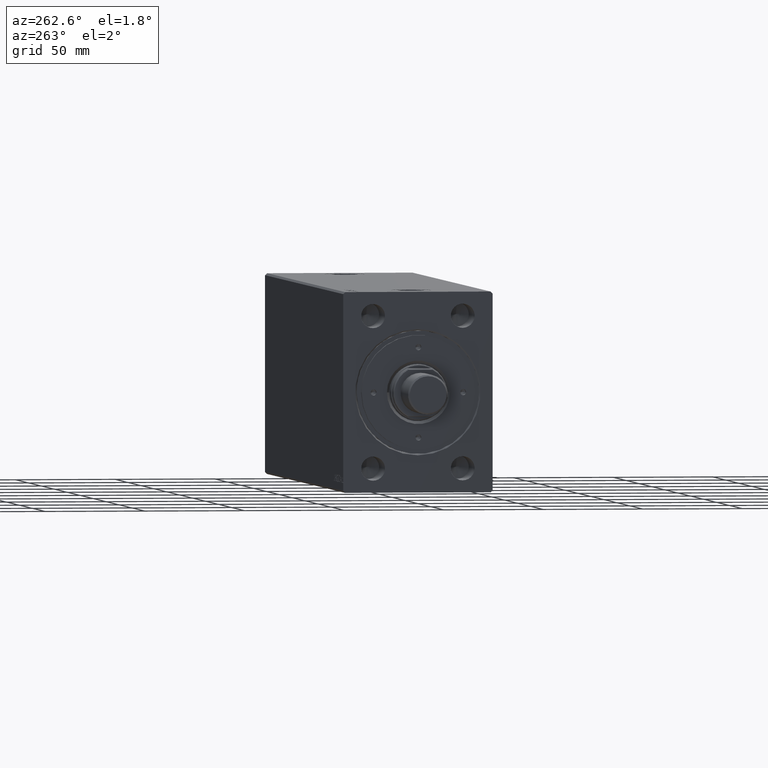
[diagram: clean part render]
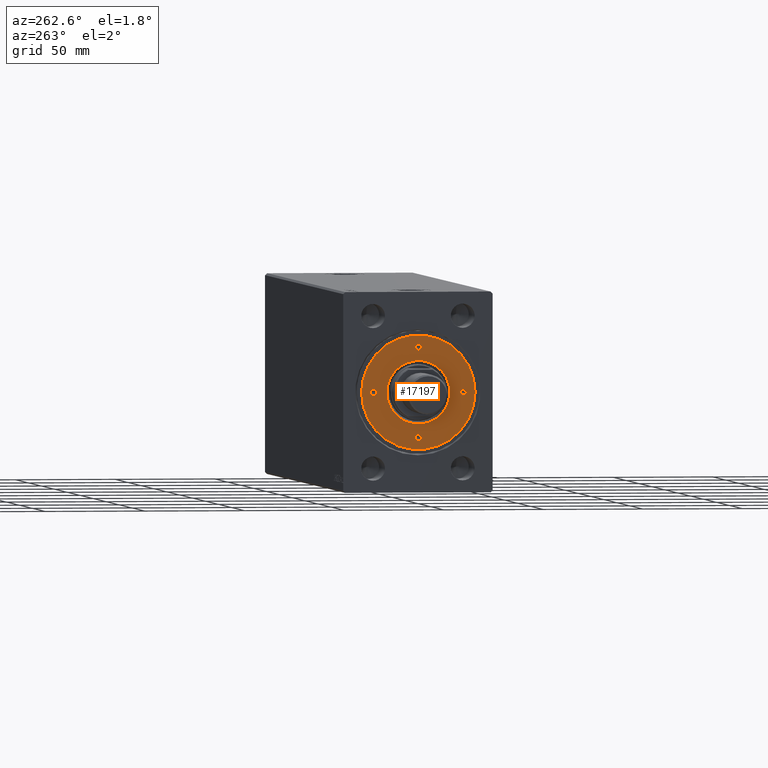
[diagram: same view with one face highlighted and labeled with its STEP entity id]
A machine part, auxiliary view. The second image highlights one B-rep face of the part: STEP entity #17197.
In plain terms, the highlighted planar face has unit normal (-1, 0, 0).
Its self-contained STEP definition (entity closure, byte-faithful):
#361 = CIRCLE ( 'NONE', #38265, 1.499999999999997780 ) ;
#528 = DIRECTION ( 'NONE',  ( 1.000000000000000000, 0.000000000000000000, 0.000000000000000000 ) ) ;
#835 = VERTEX_POINT ( 'NONE', #17282 ) ;
#1227 = VERTEX_POINT ( 'NONE', #39185 ) ;
#1899 = CARTESIAN_POINT ( 'NONE',  ( 23.99999999999999645, 0.000000000000000000, 83.79999999999999716 ) ) ;
#2348 = AXIS2_PLACEMENT_3D ( 'NONE', #18953, #12671, #2373 ) ;
#2373 = DIRECTION ( 'NONE',  ( 1.000000000000000000, 0.000000000000000000, 0.000000000000000000 ) ) ;
#2468 = CIRCLE ( 'NONE', #26163, 1.499999999999996891 ) ;
#2480 = DIRECTION ( 'NONE',  ( 0.000000000000000000, 0.000000000000000000, 1.000000000000000000 ) ) ;
#3169 = AXIS2_PLACEMENT_3D ( 'NONE', #8249, #11838, #29101 ) ;
#3336 = DIRECTION ( 'NONE',  ( 1.000000000000000000, 0.000000000000000000, 0.000000000000000000 ) ) ;
#4437 = DIRECTION ( 'NONE',  ( -0.000000000000000000, -0.000000000000000000, 1.000000000000000000 ) ) ;
#4731 = VERTEX_POINT ( 'NONE', #8942 ) ;
#4970 = EDGE_CURVE ( 'NONE', #1227, #22409, #7816, .T. ) ;
#5336 = ORIENTED_EDGE ( 'NONE', *, *, #22992, .T. ) ;
#7265 = EDGE_LOOP ( 'NONE', ( #44249, #22972 ) ) ;
#7420 = EDGE_CURVE ( 'NONE', #40053, #4731, #16466, .T. ) ;
#7816 = CIRCLE ( 'NONE', #14985, 1.499999999999997780 ) ;
#7952 = ORIENTED_EDGE ( 'NONE', *, *, #27096, .F. ) ;
#8249 = CARTESIAN_POINT ( 'NONE',  ( 0.000000000000000000, 0.000000000000000000, 83.79999999999999716 ) ) ;
#8795 = DIRECTION ( 'NONE',  ( -0.000000000000000000, -0.000000000000000000, -1.000000000000000000 ) ) ;
#8942 = CARTESIAN_POINT ( 'NONE',  ( 1.499999999999996891, -22.50000000000000000, 83.79999999999999716 ) ) ;
#8998 = DIRECTION ( 'NONE',  ( 0.000000000000000000, 0.000000000000000000, 1.000000000000000000 ) ) ;
#9138 = AXIS2_PLACEMENT_3D ( 'NONE', #31991, #14289, #10704 ) ;
#9340 = AXIS2_PLACEMENT_3D ( 'NONE', #9632, #23309, #22866 ) ;
#9510 = EDGE_LOOP ( 'NONE', ( #27989, #20530 ) ) ;
#9632 = CARTESIAN_POINT ( 'NONE',  ( 0.000000000000000000, -22.50000000000000000, 83.79999999999999716 ) ) ;
#10704 = DIRECTION ( 'NONE',  ( 1.000000000000000000, 0.000000000000000000, 0.000000000000000000 ) ) ;
#11474 = CARTESIAN_POINT ( 'NONE',  ( 22.50000000000000000, 0.000000000000000000, 83.79999999999999716 ) ) ;
#11676 = CIRCLE ( 'NONE', #23111, 1.499999999999997780 ) ;
#11838 = DIRECTION ( 'NONE',  ( -0.000000000000000000, -0.000000000000000000, -1.000000000000000000 ) ) ;
#12114 = FACE_BOUND ( 'NONE', #17606, .T. ) ;
#12319 = AXIS2_PLACEMENT_3D ( 'NONE', #23071, #2480, #16120 ) ;
#12351 = CIRCLE ( 'NONE', #2348, 1.499999999999997780 ) ;
#12550 = EDGE_LOOP ( 'NONE', ( #37875, #27877 ) ) ;
#12671 = DIRECTION ( 'NONE',  ( -0.000000000000000000, -0.000000000000000000, 1.000000000000000000 ) ) ;
#12693 = CARTESIAN_POINT ( 'NONE',  ( 0.000000000000000000, -22.50000000000000000, 83.79999999999999716 ) ) ;
#12726 = CIRCLE ( 'NONE', #9138, 28.50000000000000000 ) ;
#13181 = DIRECTION ( 'NONE',  ( -0.000000000000000000, -0.000000000000000000, 1.000000000000000000 ) ) ;
#13995 = CARTESIAN_POINT ( 'NONE',  ( -22.50000000000000000, 0.000000000000000000, 83.79999999999999716 ) ) ;
#14289 = DIRECTION ( 'NONE',  ( 0.000000000000000000, 0.000000000000000000, 1.000000000000000000 ) ) ;
#14985 = AXIS2_PLACEMENT_3D ( 'NONE', #32882, #42749, #18979 ) ;
#15082 = EDGE_CURVE ( 'NONE', #4731, #40053, #20148, .T. ) ;
#15189 = VERTEX_POINT ( 'NONE', #1899 ) ;
#15801 = VERTEX_POINT ( 'NONE', #35859 ) ;
#15908 = FACE_OUTER_BOUND ( 'NONE', #32304, .T. ) ;
#15950 = AXIS2_PLACEMENT_3D ( 'NONE', #28756, #8795, #43091 ) ;
#16039 = CIRCLE ( 'NONE', #3169, 15.79999999999997407 ) ;
#16066 = VERTEX_POINT ( 'NONE', #25156 ) ;
#16120 = DIRECTION ( 'NONE',  ( 1.000000000000000000, 0.000000000000000000, -0.000000000000000000 ) ) ;
#16466 = CIRCLE ( 'NONE', #9340, 1.499999999999996891 ) ;
#16677 = DIRECTION ( 'NONE',  ( 1.000000000000000000, 0.000000000000000000, 0.000000000000000000 ) ) ;
#17155 = DIRECTION ( 'NONE',  ( 1.000000000000000000, 0.000000000000000000, 0.000000000000000000 ) ) ;
#17197 = ADVANCED_FACE ( 'NONE', ( #40115, #30031, #43695, #32515, #12114, #15908 ), #19496, .T. ) ;
#17282 = CARTESIAN_POINT ( 'NONE',  ( -28.50000000000000000, 0.000000000000000000, 83.79999999999999716 ) ) ;
#17606 = EDGE_LOOP ( 'NONE', ( #23742, #5336 ) ) ;
#17723 = EDGE_CURVE ( 'NONE', #15801, #15189, #12351, .T. ) ;
#18223 = VERTEX_POINT ( 'NONE', #36928 ) ;
#18953 = CARTESIAN_POINT ( 'NONE',  ( 22.50000000000000000, 0.000000000000000000, 83.79999999999999716 ) ) ;
#18979 = DIRECTION ( 'NONE',  ( 1.000000000000000000, 0.000000000000000000, 0.000000000000000000 ) ) ;
#19168 = EDGE_CURVE ( 'NONE', #18223, #16066, #33150, .T. ) ;
#19496 = PLANE ( 'NONE',  #12319 ) ;
#19783 = EDGE_CURVE ( 'NONE', #22409, #1227, #11676, .T. ) ;
#20148 = CIRCLE ( 'NONE', #42331, 1.499999999999996891 ) ;
#20530 = ORIENTED_EDGE ( 'NONE', *, *, #4970, .F. ) ;
#20914 = VERTEX_POINT ( 'NONE', #28332 ) ;
#21872 = CIRCLE ( 'NONE', #34069, 28.50000000000000000 ) ;
#22409 = VERTEX_POINT ( 'NONE', #41607 ) ;
#22861 = ORIENTED_EDGE ( 'NONE', *, *, #29896, .F. ) ;
#22866 = DIRECTION ( 'NONE',  ( 1.000000000000000000, 0.000000000000000000, 0.000000000000000000 ) ) ;
#22972 = ORIENTED_EDGE ( 'NONE', *, *, #17723, .F. ) ;
#22992 = EDGE_CURVE ( 'NONE', #16066, #18223, #16039, .T. ) ;
#23071 = CARTESIAN_POINT ( 'NONE',  ( 0.000000000000000000, 0.000000000000000000, 83.79999999999999716 ) ) ;
#23111 = AXIS2_PLACEMENT_3D ( 'NONE', #13995, #43809, #16677 ) ;
#23309 = DIRECTION ( 'NONE',  ( -0.000000000000000000, -0.000000000000000000, 1.000000000000000000 ) ) ;
#23742 = ORIENTED_EDGE ( 'NONE', *, *, #19168, .T. ) ;
#25156 = CARTESIAN_POINT ( 'NONE',  ( -15.79999999999997407, 1.934941942652814473E-15, 83.79999999999999716 ) ) ;
#25420 = CIRCLE ( 'NONE', #28986, 1.499999999999996891 ) ;
#25594 = CARTESIAN_POINT ( 'NONE',  ( 0.000000000000000000, 0.000000000000000000, 83.79999999999999716 ) ) ;
#26163 = AXIS2_PLACEMENT_3D ( 'NONE', #28178, #4437, #31766 ) ;
#27096 = EDGE_CURVE ( 'NONE', #44279, #20914, #2468, .T. ) ;
#27859 = VERTEX_POINT ( 'NONE', #31388 ) ;
#27877 = ORIENTED_EDGE ( 'NONE', *, *, #7420, .F. ) ;
#27989 = ORIENTED_EDGE ( 'NONE', *, *, #19783, .F. ) ;
#28178 = CARTESIAN_POINT ( 'NONE',  ( 0.000000000000000000, 22.50000000000000000, 83.79999999999999716 ) ) ;
#28292 = CARTESIAN_POINT ( 'NONE',  ( -1.499999999999996891, -22.50000000000000000, 83.79999999999999716 ) ) ;
#28332 = CARTESIAN_POINT ( 'NONE',  ( 1.499999999999996891, 22.50000000000000000, 83.79999999999999716 ) ) ;
#28384 = ORIENTED_EDGE ( 'NONE', *, *, #37532, .T. ) ;
#28556 = EDGE_CURVE ( 'NONE', #15189, #15801, #361, .T. ) ;
#28704 = EDGE_LOOP ( 'NONE', ( #22861, #7952 ) ) ;
#28756 = CARTESIAN_POINT ( 'NONE',  ( 0.000000000000000000, 0.000000000000000000, 83.79999999999999716 ) ) ;
#28986 = AXIS2_PLACEMENT_3D ( 'NONE', #34031, #13181, #3336 ) ;
#29101 = DIRECTION ( 'NONE',  ( 1.000000000000000000, 0.000000000000000000, 0.000000000000000000 ) ) ;
#29896 = EDGE_CURVE ( 'NONE', #20914, #44279, #25420, .T. ) ;
#30031 = FACE_BOUND ( 'NONE', #28704, .T. ) ;
#30174 = DIRECTION ( 'NONE',  ( -0.000000000000000000, -0.000000000000000000, 1.000000000000000000 ) ) ;
#31388 = CARTESIAN_POINT ( 'NONE',  ( 28.50000000000000000, 3.490243377569956456E-15, 83.79999999999999716 ) ) ;
#31766 = DIRECTION ( 'NONE',  ( 1.000000000000000000, 0.000000000000000000, 0.000000000000000000 ) ) ;
#31812 = EDGE_CURVE ( 'NONE', #27859, #835, #21872, .T. ) ;
#31991 = CARTESIAN_POINT ( 'NONE',  ( 0.000000000000000000, 0.000000000000000000, 83.79999999999999716 ) ) ;
#32304 = EDGE_LOOP ( 'NONE', ( #28384, #33385 ) ) ;
#32515 = FACE_BOUND ( 'NONE', #12550, .T. ) ;
#32882 = CARTESIAN_POINT ( 'NONE',  ( -22.50000000000000000, 0.000000000000000000, 83.79999999999999716 ) ) ;
#33150 = CIRCLE ( 'NONE', #15950, 15.79999999999997407 ) ;
#33385 = ORIENTED_EDGE ( 'NONE', *, *, #31812, .T. ) ;
#34031 = CARTESIAN_POINT ( 'NONE',  ( 0.000000000000000000, 22.50000000000000000, 83.79999999999999716 ) ) ;
#34069 = AXIS2_PLACEMENT_3D ( 'NONE', #25594, #8998, #43509 ) ;
#35859 = CARTESIAN_POINT ( 'NONE',  ( 21.00000000000000000, 1.836970198721027222E-16, 83.79999999999999716 ) ) ;
#36928 = CARTESIAN_POINT ( 'NONE',  ( 15.79999999999997407, 0.000000000000000000, 83.79999999999999716 ) ) ;
#37532 = EDGE_CURVE ( 'NONE', #835, #27859, #12726, .T. ) ;
#37875 = ORIENTED_EDGE ( 'NONE', *, *, #15082, .F. ) ;
#37947 = DIRECTION ( 'NONE',  ( -0.000000000000000000, -0.000000000000000000, 1.000000000000000000 ) ) ;
#38265 = AXIS2_PLACEMENT_3D ( 'NONE', #11474, #37947, #528 ) ;
#39185 = CARTESIAN_POINT ( 'NONE',  ( -23.99999999999999645, 1.836970198721027222E-16, 83.79999999999999716 ) ) ;
#40053 = VERTEX_POINT ( 'NONE', #28292 ) ;
#40103 = CARTESIAN_POINT ( 'NONE',  ( -1.499999999999996891, 22.50000000000000000, 83.79999999999999716 ) ) ;
#40115 = FACE_BOUND ( 'NONE', #9510, .T. ) ;
#41607 = CARTESIAN_POINT ( 'NONE',  ( -21.00000000000000000, 0.000000000000000000, 83.79999999999999716 ) ) ;
#42331 = AXIS2_PLACEMENT_3D ( 'NONE', #12693, #30174, #17155 ) ;
#42749 = DIRECTION ( 'NONE',  ( -0.000000000000000000, -0.000000000000000000, 1.000000000000000000 ) ) ;
#43091 = DIRECTION ( 'NONE',  ( 1.000000000000000000, 0.000000000000000000, 0.000000000000000000 ) ) ;
#43509 = DIRECTION ( 'NONE',  ( 1.000000000000000000, 0.000000000000000000, 0.000000000000000000 ) ) ;
#43695 = FACE_BOUND ( 'NONE', #7265, .T. ) ;
#43809 = DIRECTION ( 'NONE',  ( -0.000000000000000000, -0.000000000000000000, 1.000000000000000000 ) ) ;
#44249 = ORIENTED_EDGE ( 'NONE', *, *, #28556, .F. ) ;
#44279 = VERTEX_POINT ( 'NONE', #40103 ) ;